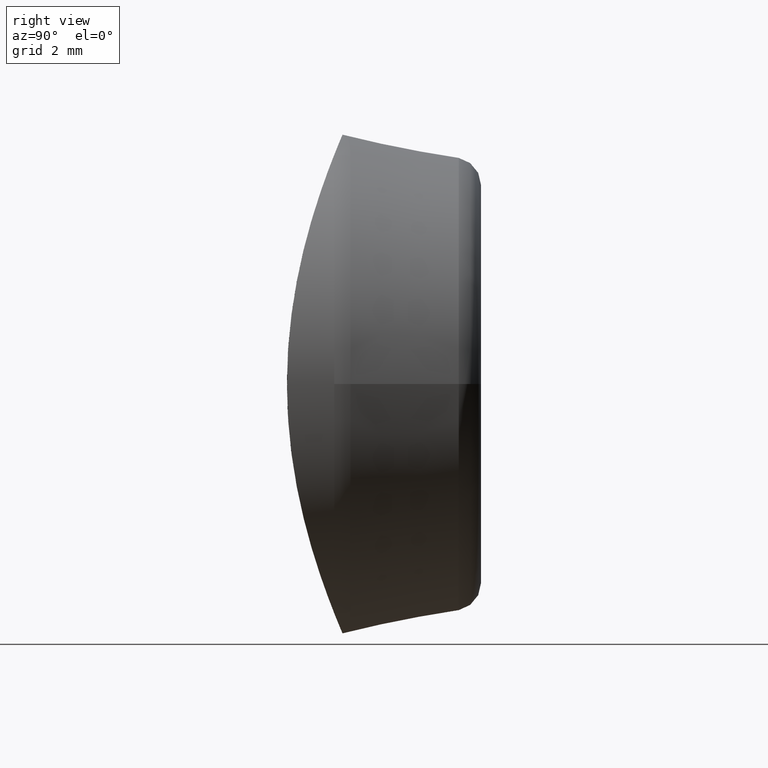
[diagram: clean part render]
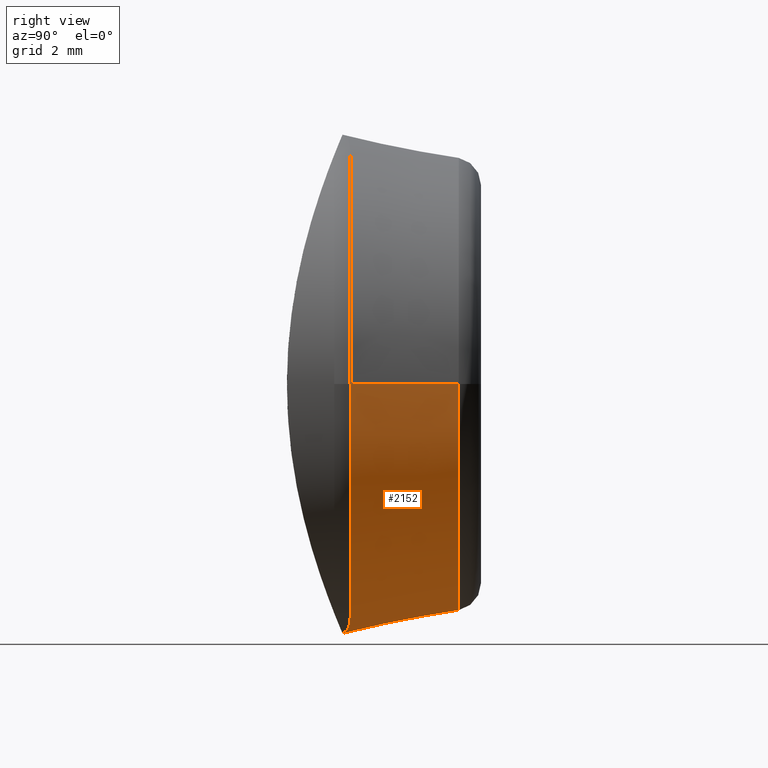
[diagram: same view with one face highlighted and labeled with its STEP entity id]
A machine part, right view. The second image highlights one B-rep face of the part: STEP entity #2152.
In plain terms, the highlighted conical surface has half-angle 11.31 deg.
Its self-contained STEP definition (entity closure, byte-faithful):
#58 = CARTESIAN_POINT ( 'NONE',  ( 1.391966423491622385E-16, 0.2912898646361993804, 0.000000000000000000 ) ) ;
#78 = DIRECTION ( 'NONE',  ( 1.000000000000000000, -5.261350102154444383E-17, 0.000000000000000000 ) ) ;
#149 = EDGE_CURVE ( 'NONE', #7930, #2010, #2582, .T. ) ;
#600 = VERTEX_POINT ( 'NONE', #6004 ) ;
#603 = CARTESIAN_POINT ( 'NONE',  ( -1.489342575992107065, 0.1972142825677526412, -8.841021651213864629 ) ) ;
#666 = VERTEX_POINT ( 'NONE', #7887 ) ;
#939 = ORIENTED_EDGE ( 'NONE', *, *, #7043, .T. ) ;
#940 = LINE ( 'NONE', #12365, #1417 ) ;
#1059 = CARTESIAN_POINT ( 'NONE',  ( 1.391966423491622878E-16, 0.2912898646362013233, 0.000000000000000000 ) ) ;
#1079 = VERTEX_POINT ( 'NONE', #8923 ) ;
#1417 = VECTOR ( 'NONE', #4474, 1000.000000000000000 ) ;
#1454 = DIRECTION ( 'NONE',  ( -5.261350102154445000E-17, -1.000000000000000000, 0.000000000000000000 ) ) ;
#1571 = CARTESIAN_POINT ( 'NONE',  ( -0.1484626099654150766, 0.02468338519896669941, -8.995063322960287877 ) ) ;
#1812 = FACE_OUTER_BOUND ( 'NONE', #9526, .T. ) ;
#2010 = VERTEX_POINT ( 'NONE', #2652 ) ;
#2152 = ADVANCED_FACE ( 'NONE', ( #1812 ), #12611, .T. ) ;
#2197 = CARTESIAN_POINT ( 'NONE',  ( 8.160776772972363702, 4.196116135138177938, 0.000000000000000000 ) ) ;
#2582 = B_SPLINE_CURVE_WITH_KNOTS ( 'NONE', 3,
 ( #10575, #1571, #8510, #9534, #4472, #3535, #603, #6448, #7543, #11419 ),
 .UNSPECIFIED., .F., .F.,
 ( 4, 2, 2, 2, 4 ),
 ( -4.334183121953194312E-05, 0.0004084014656399369498, 0.0008601447624994055987, 0.001763631356218343330, 0.003570604543656219661 ),
 .UNSPECIFIED. ) ;
#2652 = CARTESIAN_POINT ( 'NONE',  ( -3.513636803764328409, 0.2912898646362016564, -8.222475715376242889 ) ) ;
#2828 = EDGE_CURVE ( 'NONE', #4808, #666, #8154, .T. ) ;
#2845 = AXIS2_PLACEMENT_3D ( 'NONE', #58, #5856, #6938 ) ;
#2933 = CARTESIAN_POINT ( 'NONE',  ( 0.6011557166169638755, 0.09994811570343008211, -8.980010376859315357 ) ) ;
#3451 = CARTESIAN_POINT ( 'NONE',  ( 9.000000000000000000, 3.938402287945035527E-16, 0.000000000000000000 ) ) ;
#3535 = CARTESIAN_POINT ( 'NONE',  ( -1.193992595277781898, 0.1670400778745009529, -8.891784521139870279 ) ) ;
#3851 = AXIS2_PLACEMENT_3D ( 'NONE', #4951, #7983, #78 ) ;
#4279 = DIRECTION ( 'NONE',  ( -1.000000000000000000, 0.000000000000000000, 0.000000000000000000 ) ) ;
#4472 = CARTESIAN_POINT ( 'NONE',  ( -0.7481479263254029455, 0.1118837125434133106, -8.947648498459530586 ) ) ;
#4474 = DIRECTION ( 'NONE',  ( -0.1961161351381839613, -0.9805806756909202226, 2.401729971581266715E-17 ) ) ;
#4524 = CIRCLE ( 'NONE', #6779, 8.160776772972363702 ) ;
#4687 = EDGE_CURVE ( 'NONE', #1079, #7930, #12758, .T. ) ;
#4727 = EDGE_CURVE ( 'NONE', #666, #1079, #9704, .T. ) ;
#4808 = VERTEX_POINT ( 'NONE', #2197 ) ;
#4885 = CARTESIAN_POINT ( 'NONE',  ( 1.196285079027233023, 0.1733730629509338539, -8.905433154794955897 ) ) ;
#4951 = CARTESIAN_POINT ( 'NONE',  ( 4.814824860968089633E-32, 8.673617379884035472E-16, 0.000000000000000000 ) ) ;
#5646 = CIRCLE ( 'NONE', #5858, 8.941742027072757892 ) ;
#5856 = DIRECTION ( 'NONE',  ( 5.261350102154445000E-17, 1.000000000000000000, -0.000000000000000000 ) ) ;
#5858 = AXIS2_PLACEMENT_3D ( 'NONE', #1059, #6038, #7918 ) ;
#5911 = CARTESIAN_POINT ( 'NONE',  ( 3.513636803764551786, 0.2912898646361995469, -8.222475715376146965 ) ) ;
#6004 = CARTESIAN_POINT ( 'NONE',  ( -8.941742027072759669, 0.2912898646362018229, 1.095047575225602147E-15 ) ) ;
#6038 = DIRECTION ( 'NONE',  ( 5.261350102154445000E-17, 1.000000000000000000, -0.000000000000000000 ) ) ;
#6401 = ORIENTED_EDGE ( 'NONE', *, *, #4687, .T. ) ;
#6448 = CARTESIAN_POINT ( 'NONE',  ( -2.369560525559930131, 0.2688447327935334918, -8.647607546258191391 ) ) ;
#6738 = VECTOR ( 'NONE', #10388, 1000.000000000000000 ) ;
#6779 = AXIS2_PLACEMENT_3D ( 'NONE', #10366, #1454, #4279 ) ;
#6876 = ORIENTED_EDGE ( 'NONE', *, *, #4727, .T. ) ;
#6938 = DIRECTION ( 'NONE',  ( 1.000000000000000000, -5.456330278163895655E-17, 0.000000000000000000 ) ) ;
#7026 = CARTESIAN_POINT ( 'NONE',  ( 1.711870285715402075E-17, 0.000000000000000000, -9.000000000000000000 ) ) ;
#7043 = EDGE_CURVE ( 'NONE', #10386, #4808, #4524, .T. ) ;
#7197 = CARTESIAN_POINT ( 'NONE',  ( 1.711870285715402075E-17, 0.000000000000000000, -9.000000000000000000 ) ) ;
#7543 = CARTESIAN_POINT ( 'NONE',  ( -2.952447361417942062, 0.2912898646341491316, -8.462283766718812217 ) ) ;
#7887 = CARTESIAN_POINT ( 'NONE',  ( 8.941742027072759669, 0.2912898646361988808, 0.000000000000000000 ) ) ;
#7918 = DIRECTION ( 'NONE',  ( 1.000000000000000000, -5.456330278163895655E-17, 0.000000000000000000 ) ) ;
#7930 = VERTEX_POINT ( 'NONE', #7197 ) ;
#7983 = DIRECTION ( 'NONE',  ( -5.261350102154445000E-17, -1.000000000000000000, 0.000000000000000000 ) ) ;
#8154 = LINE ( 'NONE', #3451, #6738 ) ;
#8510 = CARTESIAN_POINT ( 'NONE',  ( -0.2999507259900708878, 0.04841574157770385523, -8.986563016658568159 ) ) ;
#8540 = CARTESIAN_POINT ( 'NONE',  ( -8.160776772972363702, 4.196116135138177938, 1.051102842906766997E-15 ) ) ;
#8593 = EDGE_CURVE ( 'NONE', #2010, #600, #5646, .T. ) ;
#8923 = CARTESIAN_POINT ( 'NONE',  ( 3.513636803764551786, 0.2912898646361995469, -8.222475715376146965 ) ) ;
#9056 = CARTESIAN_POINT ( 'NONE',  ( 2.952530129069342202, 0.2912898646362056532, -8.462248398360205925 ) ) ;
#9526 = EDGE_LOOP ( 'NONE', ( #12979, #939, #11062, #6876, #6401, #11238, #10167 ) ) ;
#9534 = CARTESIAN_POINT ( 'NONE',  ( -0.5990620060561411275, 0.09184943411130770674, -8.962884156316933471 ) ) ;
#9704 = CIRCLE ( 'NONE', #2845, 8.941742027072757892 ) ;
#10058 = CARTESIAN_POINT ( 'NONE',  ( 2.369731318023490463, 0.2688513903694030871, -8.647553300242934782 ) ) ;
#10167 = ORIENTED_EDGE ( 'NONE', *, *, #8593, .T. ) ;
#10366 = CARTESIAN_POINT ( 'NONE',  ( 2.207723605626119049E-16, 4.196116135138177938, 0.000000000000000000 ) ) ;
#10386 = VERTEX_POINT ( 'NONE', #8540 ) ;
#10388 = DIRECTION ( 'NONE',  ( 0.1961161351381838780, -0.9805806756909202226, 0.000000000000000000 ) ) ;
#10575 = CARTESIAN_POINT ( 'NONE',  ( 1.711870285715402075E-17, 0.000000000000000000, -9.000000000000000000 ) ) ;
#11062 = ORIENTED_EDGE ( 'NONE', *, *, #2828, .T. ) ;
#11238 = ORIENTED_EDGE ( 'NONE', *, *, #149, .T. ) ;
#11419 = CARTESIAN_POINT ( 'NONE',  ( -3.513636803764328409, 0.2912898646362016564, -8.222475715376242889 ) ) ;
#11597 = EDGE_CURVE ( 'NONE', #10386, #600, #940, .T. ) ;
#12365 = CARTESIAN_POINT ( 'NONE',  ( -9.000000000000000000, 1.340883247182303640E-15, 1.102182119232617714E-15 ) ) ;
#12611 = CONICAL_SURFACE ( 'NONE', #3851, 9.000000000000000000, 0.1973955598498806085 ) ;
#12758 = B_SPLINE_CURVE_WITH_KNOTS ( 'NONE', 3,
 ( #5911, #9056, #10058, #4885, #2933, #7026 ),
 .UNSPECIFIED., .F., .F.,
 ( 4, 2, 4 ),
 ( 0.000000000000000000, 0.001829201745908011706, 0.003658403491816023412 ),
 .UNSPECIFIED. ) ;
#12979 = ORIENTED_EDGE ( 'NONE', *, *, #11597, .F. ) ;